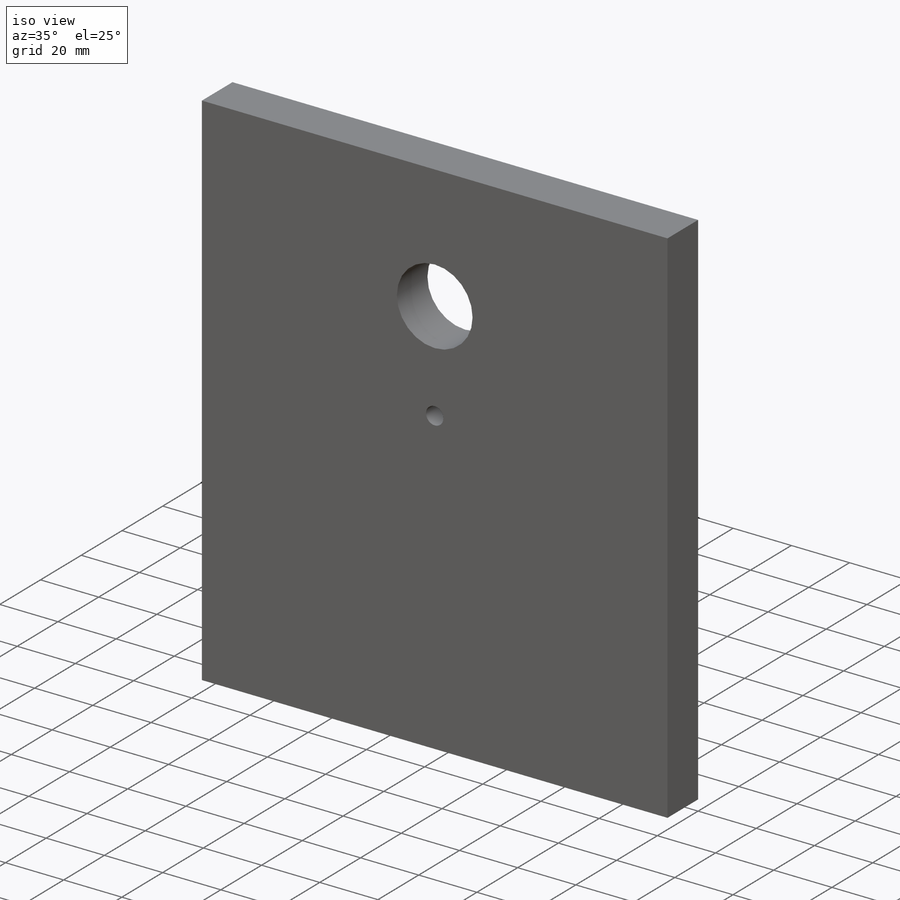
[diagram: iso view]
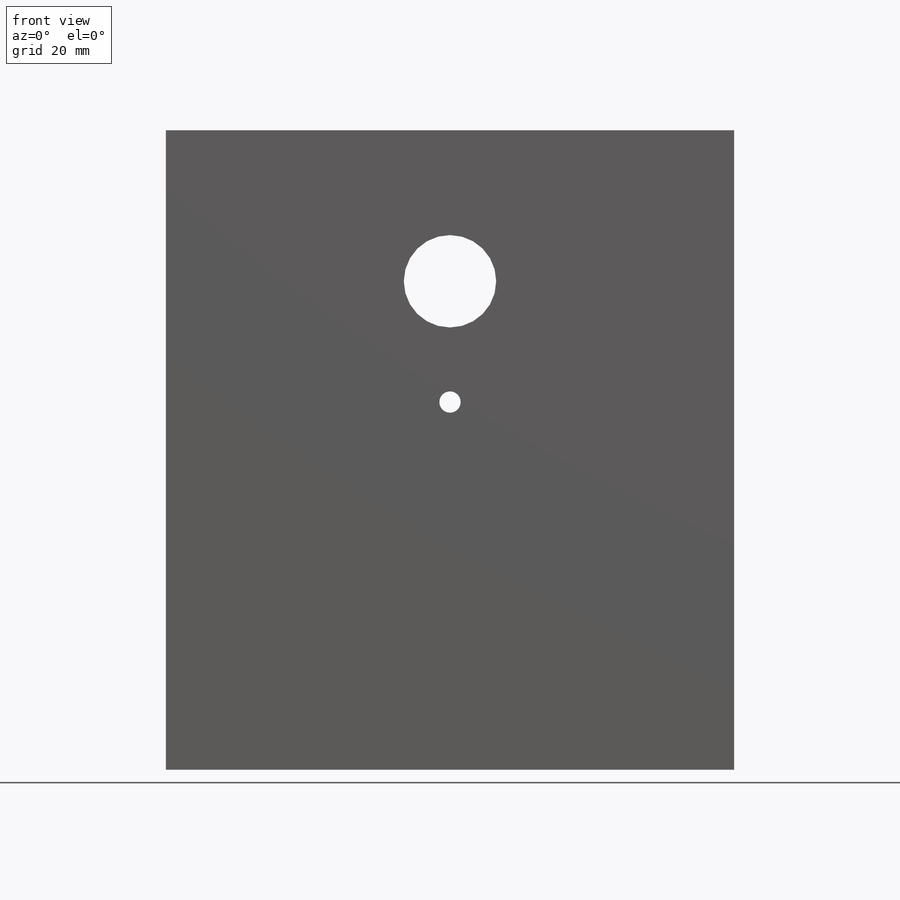
[diagram: front view]
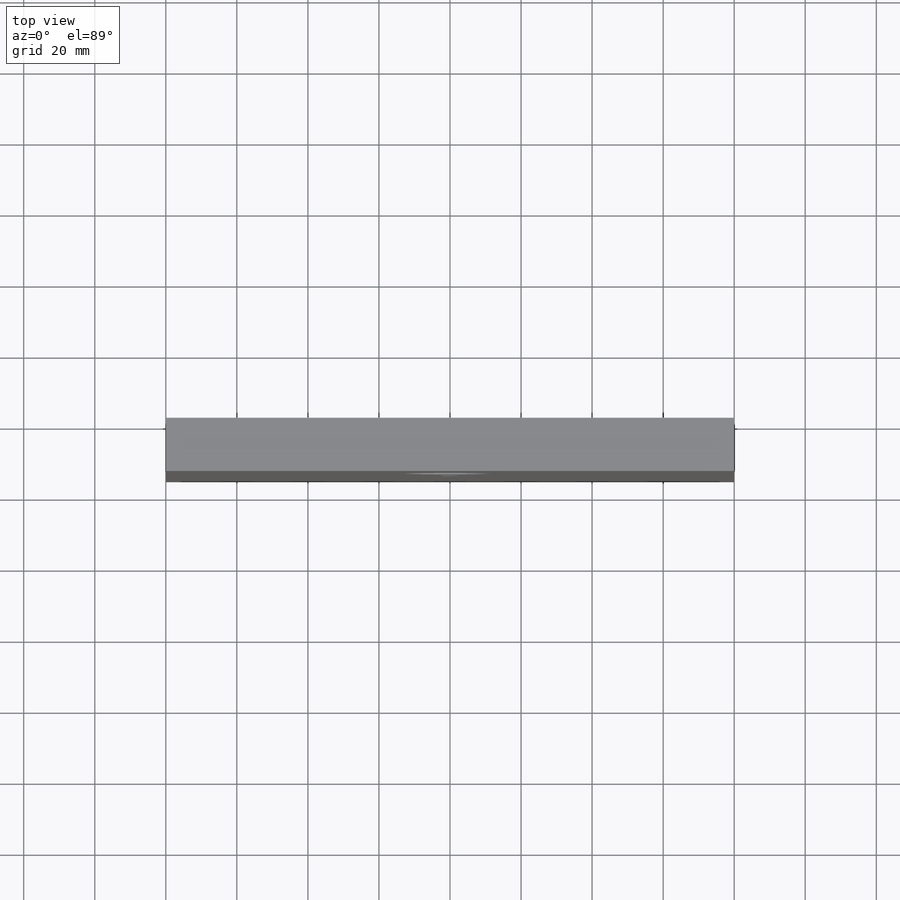
[diagram: top view]
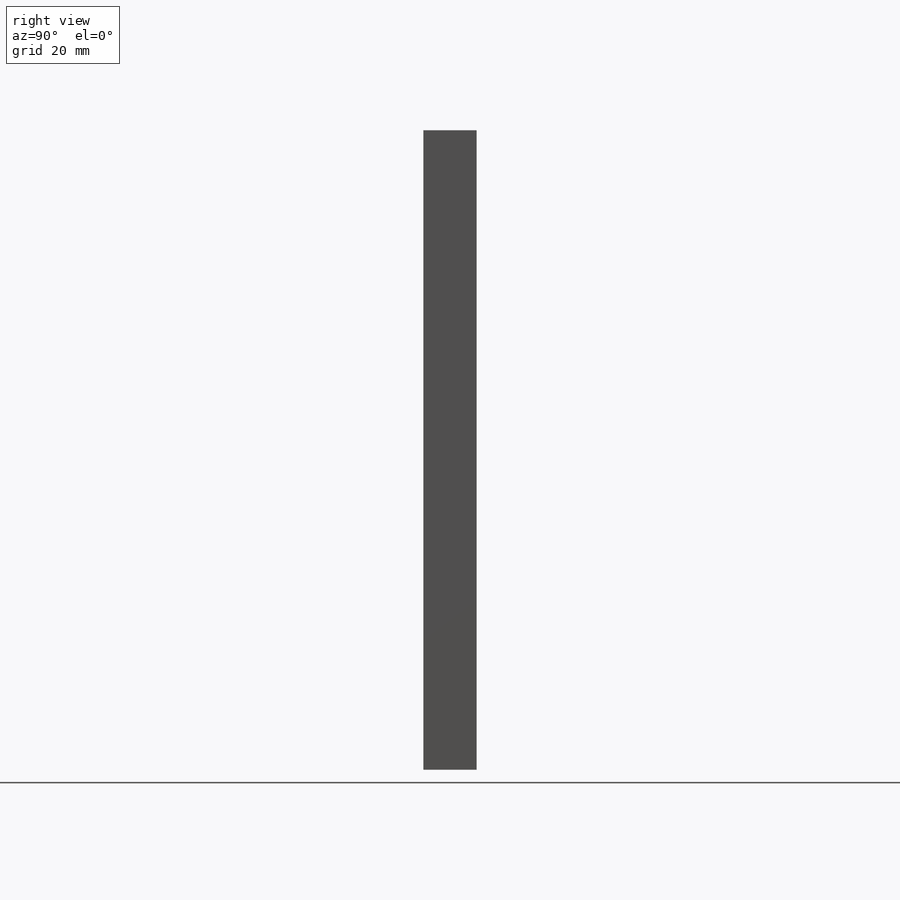
[diagram: right view]
SOLIDWORKS PART (.sldprt)
format: sldprt  version: not decoded by parser v0  size: 177,664 bytes
history: native  units: mm
features: sketch x8, hole x2, material x1, extrude x1, cut_extrude x1 (+12 scaffold rows collapsed)
feature tree (25):
  scaffold x12  (default folders/planes/origin — collapsed)
  material  "Material <not specified>"
  sketch  "Sketch2"  dims[D1=160.0mm D2=180.0mm]
  extrude  "Boss-Extrude1"  Depth=15mm
  sketch  "Sketch3"
  hole  "Ø20.0 (20) Diameter Hole1"  Diameter=26.01mm Depth=15mm
  sketch  "Sketch5"
  sketch  "Sketch6"  dims[hole-wizard template sketch: 59 standard entries collapsed; hole parameters kept: c18.Thru Hole Dia.=26.01mm c18.Thru Hole Depth=15.0mm]
  sketch  "Sketch7"  dims[D1=34.0mm]
  hole  "Ø6.0mm Dowel Hole1"  Diameter=6mm Depth=40mm
  sketch  "Sketch9"
  sketch  "Sketch8"  dims[hole-wizard template sketch: 47 standard entries collapsed; hole parameters kept: c15.Hole Depth=40.0mm c15.D3=~14.816244mm c15.Drill Angle=118.0deg]
  sketch  "Sketch10"  dims[D1=~7.209306mm]
  cut_extrude  "Cut-Extrude1"  [1 undecoded]
decode coverage: 8 of 12 modeling features carry decoded parameters
note: ~ marks probable driven/reference dimensions
note: 1 parameter value undecoded
note: suppression state not decoded; provenance and decode notes live in map.json
